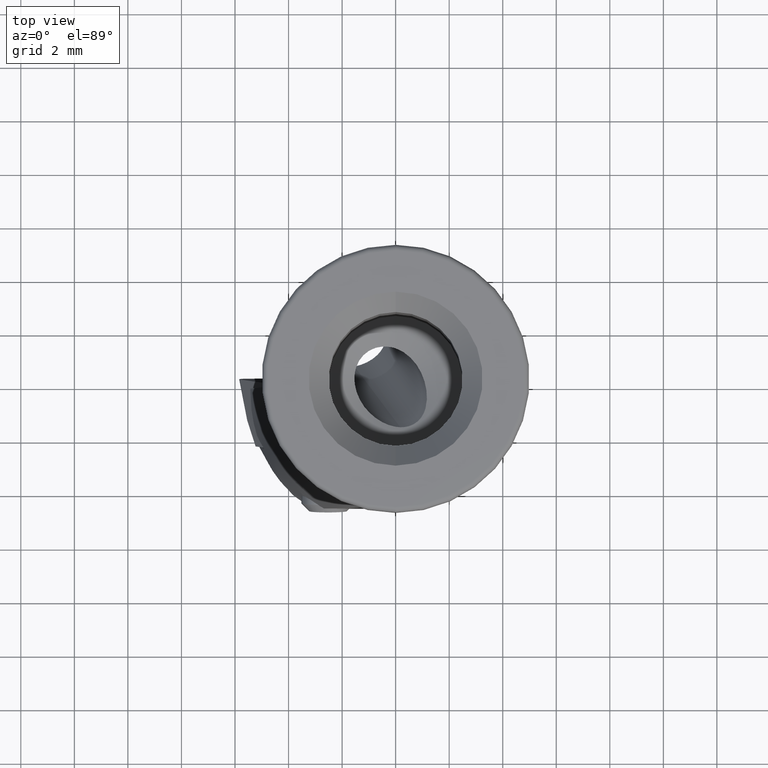
[diagram: clean part render]
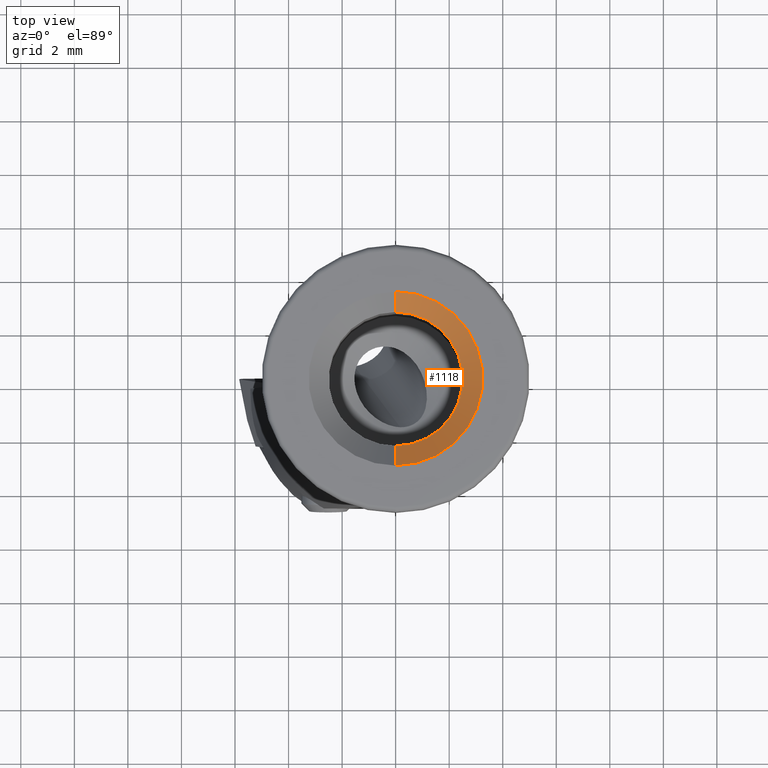
[diagram: same view with one face highlighted and labeled with its STEP entity id]
A machine part, top view. The second image highlights one B-rep face of the part: STEP entity #1118.
In plain terms, the highlighted conical surface has half-angle 45 deg.
Its self-contained STEP definition (entity closure, byte-faithful):
#694=VERTEX_POINT('NONE',#1948);
#888=VERTEX_POINT('NONE',#2165);
#908=EDGE_CURVE('NONE',#694,#1772,#2187,.F.);
#1118=ADVANCED_FACE('NONE',(#2416),#2417,.F.);
#1384=EDGE_CURVE('NONE',#1772,#888,#2711,.T.);
#1588=EDGE_CURVE('NONE',#888,#1804,#2936,.F.);
#1772=VERTEX_POINT('NONE',#3143);
#1776=EDGE_CURVE('NONE',#694,#1804,#3148,.T.);
#1804=VERTEX_POINT('NONE',#3181);
#1948=CARTESIAN_POINT('',(0.0,-2.5,-0.749999999999997));
#2165=CARTESIAN_POINT('',(3.9801020972289E-016,3.25,0.0));
#2187=CIRCLE('',#4210,2.5);
#2416=FACE_OUTER_BOUND('',#4872,.T.);
#2417=CONICAL_SURFACE('',#4873,2.5,0.78539816339745);
#2711=LINE('',#5447,#5448);
#2936=CIRCLE('',#5966,3.25);
#3143=CARTESIAN_POINT('',(3.52085954754864E-016,2.5,-0.749999999999997));
#3148=LINE('',#6410,#6411);
#3181=CARTESIAN_POINT('',(0.0,-3.25,0.0));
#4210=AXIS2_PLACEMENT_3D('',#6919,#6920,#6921);
#4872=EDGE_LOOP('',(#7167,#7168,#7169,#7170));
#4873=AXIS2_PLACEMENT_3D('',#7171,#7172,#7173);
#5447=CARTESIAN_POINT('',(3.06161699786838E-016,2.5,-0.749999999999997));
#5448=VECTOR('',#7527,1000.0);
#5966=AXIS2_PLACEMENT_3D('',#7786,#7787,#7788);
#6410=CARTESIAN_POINT('',(0.0,-2.5,-0.749999999999997));
#6411=VECTOR('',#8082,1000.0);
#6919=CARTESIAN_POINT('',(0.0,0.0,-0.749999999999997));
#6920=DIRECTION('',(0.0,0.0,-1.0));
#6921=DIRECTION('',(0.0,-1.0,0.0));
#7167=ORIENTED_EDGE('',*,*,#1384,.F.);
#7168=ORIENTED_EDGE('',*,*,#908,.F.);
#7169=ORIENTED_EDGE('',*,*,#1776,.T.);
#7170=ORIENTED_EDGE('',*,*,#1588,.F.);
#7171=CARTESIAN_POINT('',(0.0,0.0,-0.749999999999997));
#7172=DIRECTION('',(-0.0,-0.0,1.0));
#7173=DIRECTION('',(0.0,-1.0,0.0));
#7527=DIRECTION('',(8.65956056235495E-017,0.707106781186549,0.707106781186546));
#7786=CARTESIAN_POINT('',(0.0,0.0,0.0));
#7787=DIRECTION('',(0.0,0.0,1.0));
#7788=DIRECTION('',(0.0,-1.0,0.0));
#8082=DIRECTION('',(0.0,-0.707106781186549,0.707106781186546));